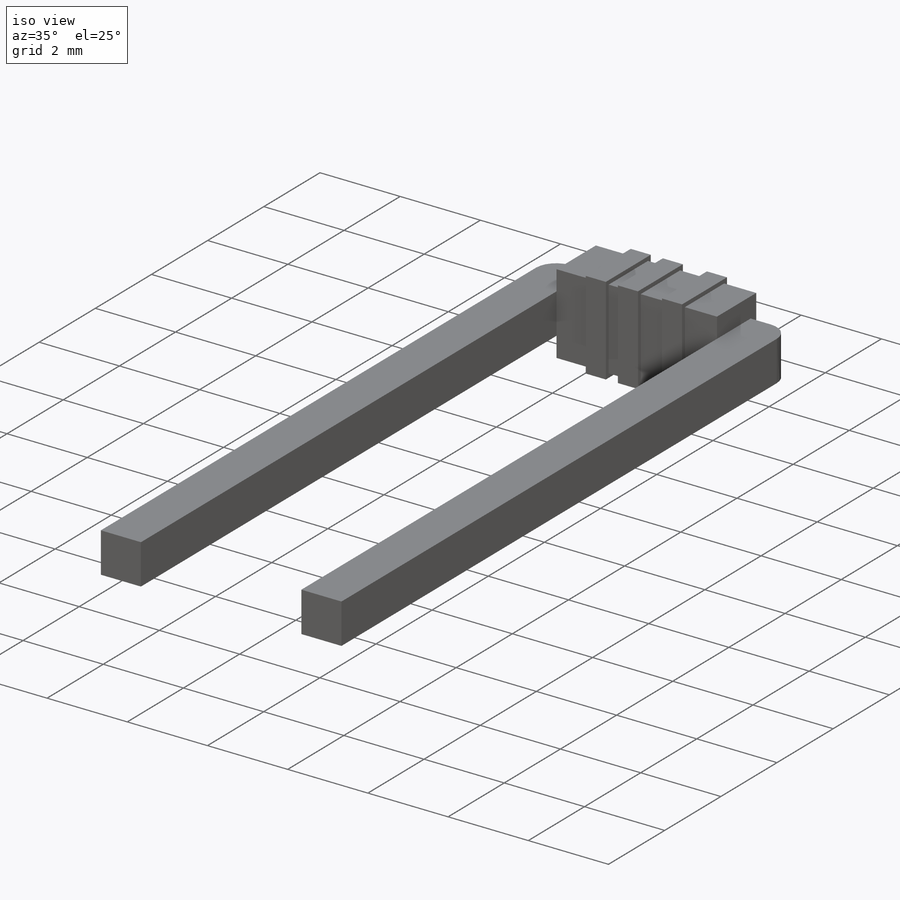
[diagram: iso view]
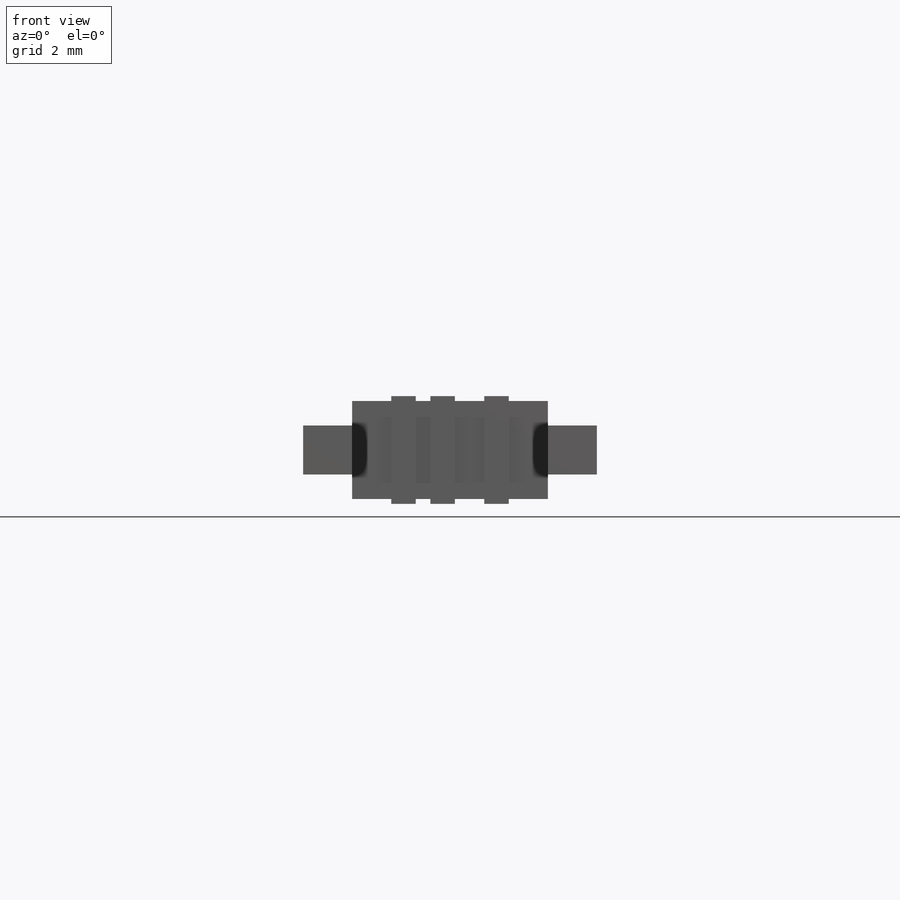
[diagram: front view]
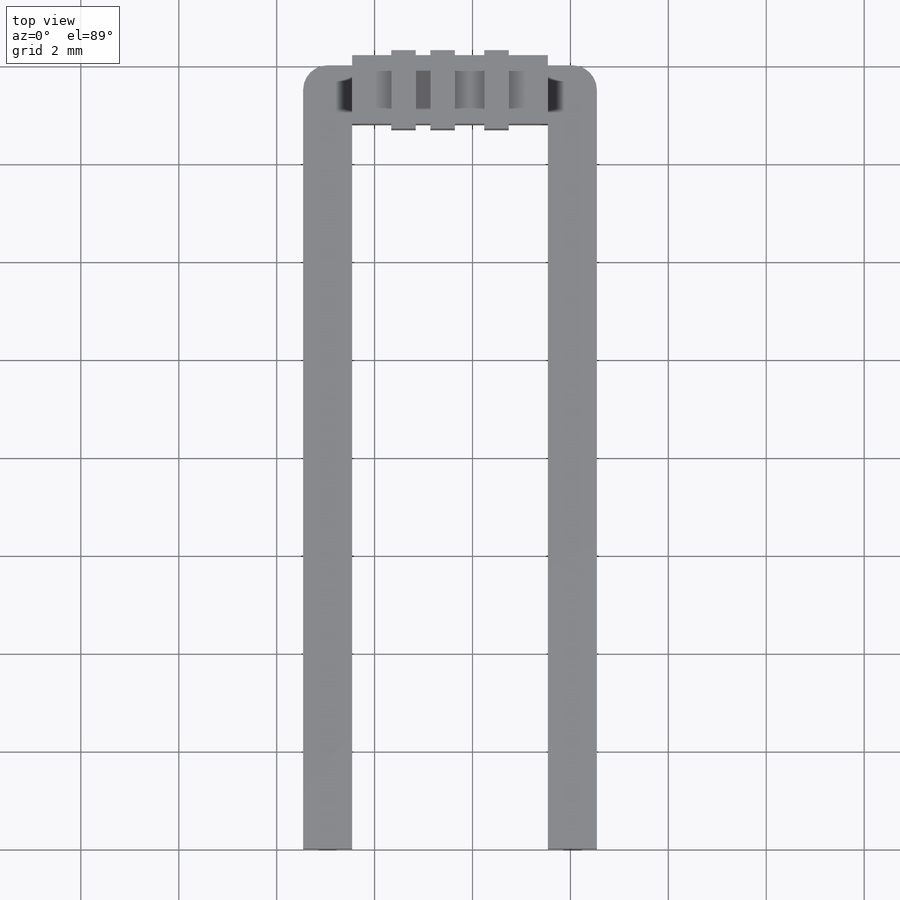
[diagram: top view]
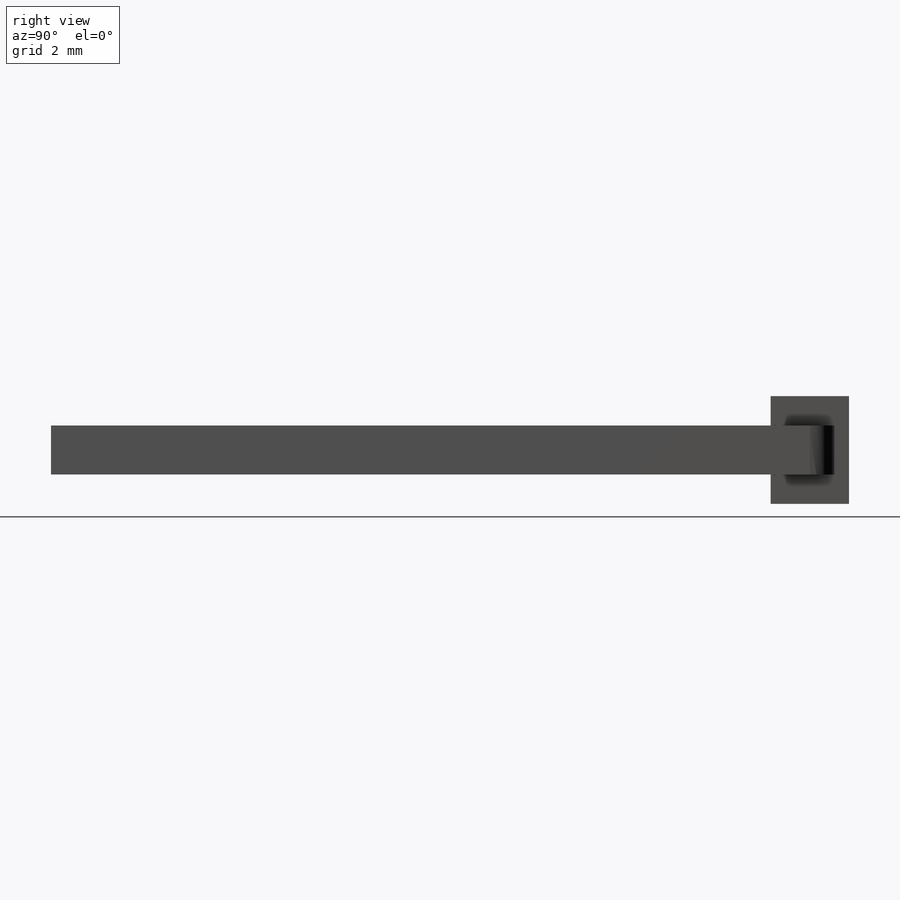
[diagram: right view]
SOLIDWORKS PART (.sldprt)
format: sldprt  version: not decoded by parser v0  size: 286,208 bytes
history: native  units: mm
features: sketch x6, extrude x4, material x1, cut_extrude x1 (+13 scaffold rows collapsed)
feature tree (25):
  scaffold x13  (default folders/planes/origin — collapsed)
  material  "Material <not specified>"
  sketch  "Sketch1"  dims[c1.D7=1.0mm c1.D8=1.0mm c1.D1=15.0mm c1.D2=15.0mm c1.D3=4.0mm c1.D4=1.0mm c1.D5=~18.167702mm c1.D6=1.0mm c2.D7=~3.167702mm c2.D5=1.0mm c2.D8=16.0mm]
  extrude  "Boss-Extrude1"  Depth=1mm
  sketch  "Sketch2"  dims[D1=10.0mm D2=5.5mm D3=4.0mm D4=13.5mm D5=10.5mm]
  sketch  "Sketch3"  dims[D1=0.2mm D2=0.2mm D3=1.0mm D4=1.0mm D5=4.0mm]
  extrude  "Boss-Extrude2"  Depth=3mm
  sketch  "Sketch4"
  cut_extrude  "Cut-Extrude1"  Depth=1mm
  sketch  "Sketch5"  dims[D1=0.5mm D2=0.5mm D3=0.5mm D4=0.8mm D5=0.3mm D6=0.6mm D7=0.1mm D8=0.1mm D9=0.1mm D10=0.1mm]
  extrude  "Boss-Extrude4"  Depth=2.1mm
  sketch  "Sketch6"
  extrude  "Boss-Extrude5"  Depth=0.1mm
decode coverage: 9 of 11 modeling features carry decoded parameters
note: ~ marks probable driven/reference dimensions
note: suppression state not decoded; provenance and decode notes live in map.json
